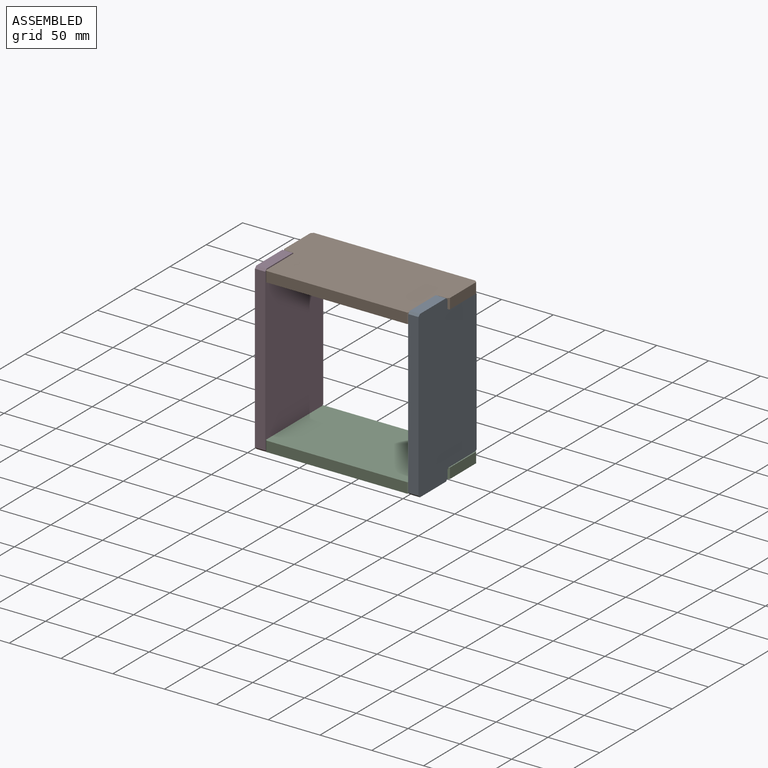
[diagram: assembled view]
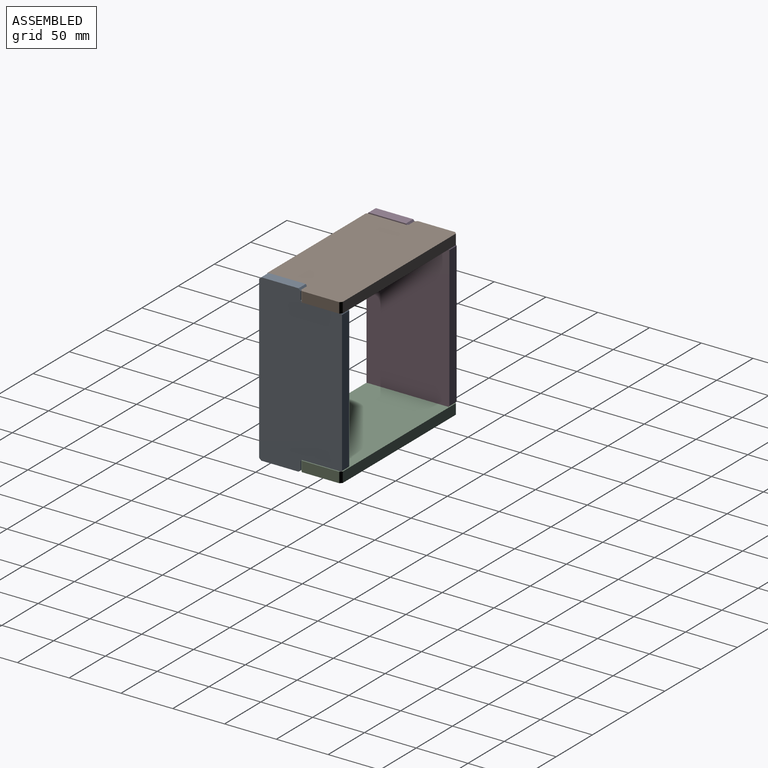
[diagram: assembled view, second angle]
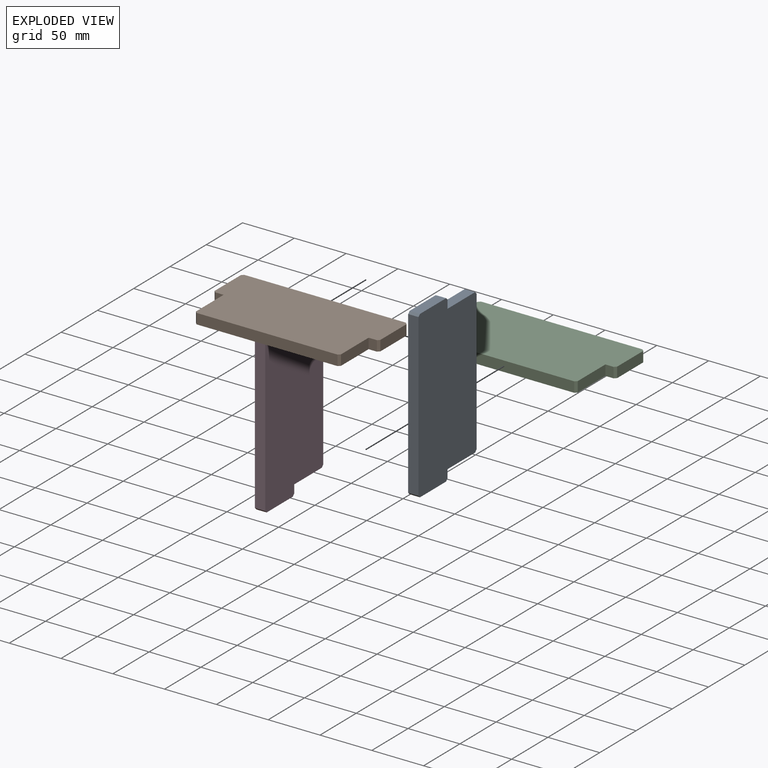
[diagram: exploded view]
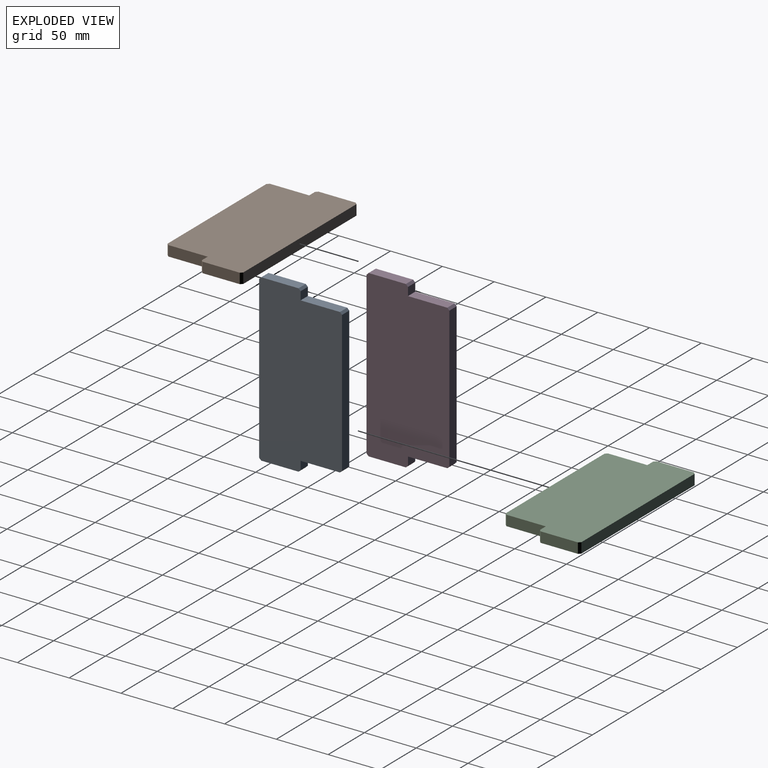
[diagram: exploded view, second angle]
ASSEMBLY  parts=4 mates=3
PART A: 16 faces, bbox 10x80x160 mm
  f0: plane 10x8mm, normal (0,1,0), area 80mm2, adj f7,f8,f9,f14
  f1: plane 36x10mm, normal (0,0,1), area 360mm2, adj f8,f9,f10,f14
  f2: plane 156x10mm, normal (0,-1,0), area 1560mm2, adj f8,f9,f10,f11
  f3: plane 36x10mm, normal (0,0,-1), area 360mm2, adj f8,f9,f11,f12
  f4: plane 10x8mm, normal (0,1,0), area 80mm2, adj f5,f8,f9,f12
  f5: plane 38x10mm, normal (0,0,-1), area 380mm2, adj f4,f8,f9,f13
  f6: plane 136x10mm, normal (0,1,0), area 1360mm2, adj f8,f9,f13,f15
  f7: plane 38x10mm, normal (0,0,1), area 380mm2, adj f0,f8,f9,f15
  f8: plane 160x80mm, normal (1,0,0), area 11988mm2, adj f0,f1,f2,f3,f4,f5,f6,f7
  f9: plane 160x80mm, normal (-1,0,0), area 11988mm2, adj f0,f1,f2,f3,f4,f5,f6,f7
  f10: plane 10x2mm, normal (0,-0.71,0.71), area 28.3mm2, adj f1,f2,f8,f9
  f11: plane 10x2mm, normal (0,-0.71,-0.71), area 28.3mm2, adj f2,f3,f8,f9
  f12: plane 10x2mm, normal (0,0.71,-0.71), area 28.3mm2, adj f3,f4,f8,f9
  f13: plane 10x2mm, normal (0,0.71,-0.71), area 28.3mm2, adj f5,f6,f8,f9
  f14: plane 10x2mm, normal (0,0.71,0.71), area 28.3mm2, adj f0,f1,f8,f9
  f15: plane 10x2mm, normal (0,0.71,0.71), area 28.3mm2, adj f6,f7,f8,f9
PART B: same geometry as A
PART C: same geometry as A
PART D: same geometry as A
PLACE A t=(74,-1.33,69)mm
PLACE B rot(axis=(-0.71,0,-0.71),180deg) t=(0,-1.33,143)mm
PLACE C rot(axis=(0.71,0,0.71),180deg) t=(0,-1.33,-5)mm
PLACE D rot(axis=(1,0,0),0deg) t=(-74,-1.33,69)mm
MATE fastened D.f4 <-> C.f4  axis (0,1,0) through (-74,-1.33,-5)mm
MATE revolute B.f4 <-> D.f0  axis (0,-1,0) through (-74,-1.33,143)mm
MATE fastened C.f0 <-> A.f4  axis (0,-1,0) through (74,-1.33,-5)mm
